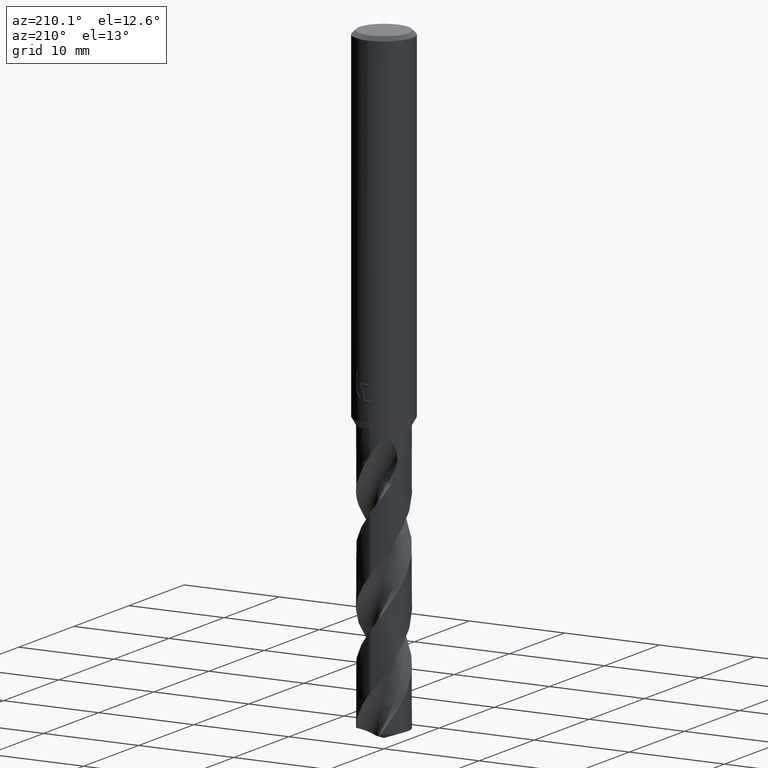
[diagram: clean part render]
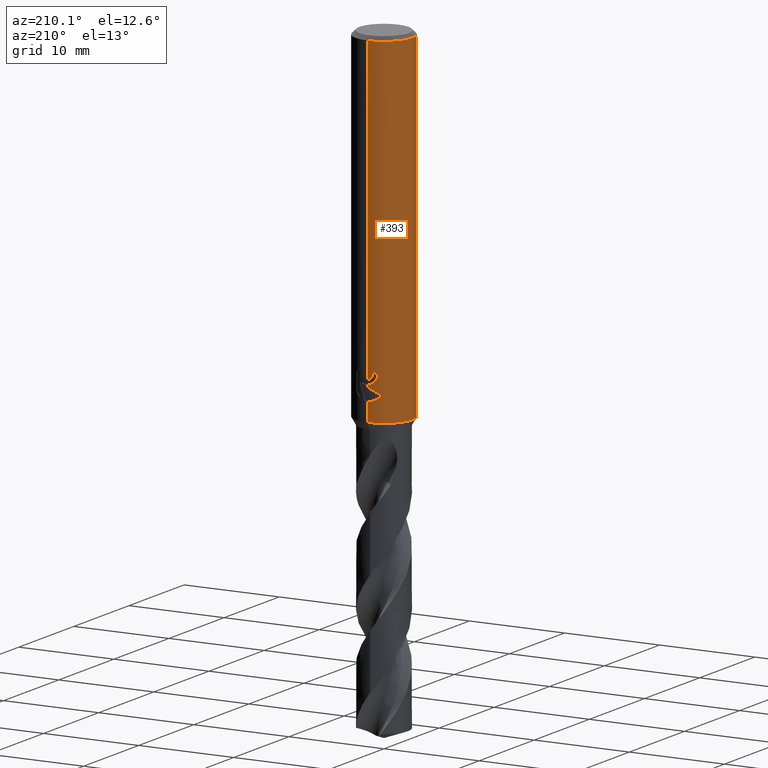
[diagram: same view with one face highlighted and labeled with its STEP entity id]
A machine part, auxiliary view. The second image highlights one B-rep face of the part: STEP entity #393.
In plain terms, the highlighted cylindrical surface (edge-blend (fillet) strip) has radius 3 mm, axis along (-0, -0, 1).
Its self-contained STEP definition (entity closure, byte-faithful):
#285=VERTEX_POINT('',#778);
#301=EDGE_CURVE('',#645,#655,#796,.T.);
#313=EDGE_CURVE('',#655,#411,#809,.T.);
#317=EDGE_CURVE('',#501,#661,#813,.T.);
#333=EDGE_CURVE('',#693,#639,#830,.T.);
#345=VERTEX_POINT('',#842);
#359=VERTEX_POINT('',#859);
#365=EDGE_CURVE('',#603,#693,#865,.T.);
#393=ADVANCED_FACE('',(#898),#899,.T.);
#411=VERTEX_POINT('',#918);
#429=EDGE_CURVE('',#639,#359,#938,.T.);
#501=VERTEX_POINT('',#1014);
#553=EDGE_CURVE('',#345,#603,#1069,.T.);
#579=EDGE_CURVE('',#733,#345,#1097,.T.);
#603=VERTEX_POINT('',#1123);
#639=VERTEX_POINT('',#1163);
#645=VERTEX_POINT('',#1169);
#655=VERTEX_POINT('',#1181);
#659=EDGE_CURVE('',#411,#501,#1185,.T.);
#661=VERTEX_POINT('',#1187);
#667=EDGE_CURVE('',#359,#645,#1194,.T.);
#693=VERTEX_POINT('',#1223);
#697=EDGE_CURVE('',#661,#285,#1227,.T.);
#703=EDGE_CURVE('',#733,#285,#1234,.T.);
#733=VERTEX_POINT('',#1267);
#778=CARTESIAN_POINT('',(0.0,3.0,-36.0));
#796=B_SPLINE_CURVE_WITH_KNOTS('',3,(#2076,#2077,#2078,#2079,#2080,#2081,#2082,#2083,#2084,#2085,#2086,#2087,#2088,#2089),.UNSPECIFIED.,.F.,.F.,(4,2,2,2,2,2,4),(3.16026050654945,3.61086409539206,4.06146768423468,4.51207127307729,4.95991823802074,5.40776520296419,5.86282890530594),.UNSPECIFIED.);
#809=LINE('',#2287,#2288);
#813=B_SPLINE_CURVE_WITH_KNOTS('',3,(#2385,#2386,#2387,#2388,#2389,#2390,#2391,#2392,#2393,#2394,#2395,#2396,#2397,#2398,#2399,#2400),.UNSPECIFIED.,.F.,.F.,(4,2,2,2,2,2,2,4),(5.66023402257373,6.29060333517104,6.60504483258975,6.91948633000846,7.23392782742717,7.54836932484587,7.86141901111221,8.17446869737855),.UNSPECIFIED.);
#830=B_SPLINE_CURVE_WITH_KNOTS('',3,(#2514,#2515,#2516,#2517,#2518,#2519,#2520,#2521,#2522,#2523,#2524,#2525,#2526,#2527,#2528,#2529,#2530,#2531,#2532,#2533,#2534,#2535,#2536,#2537,#2538,#2539,#2540),.UNSPECIFIED.,.F.,.F.,(4,2,3,2,2,2,2,2,2,2,2,2,4),(-0.54422824842136,-0.27211412421068,0.0,0.272114124210678,0.544228248421357,0.817906359646673,1.09158447087199,1.36255924571499,1.63353402055798,1.90530456554772,2.17707511053746,2.4488456555272,2.72061620051693),.UNSPECIFIED.);
#842=CARTESIAN_POINT('',(3.67381906146713E-016,-3.0,-0.399999999999999));
#859=CARTESIAN_POINT('',(-0.562333990228013,2.94682549253162,-31.3171221986971));
#865=LINE('',#2790,#2791);
#898=FACE_OUTER_BOUND('',#2924,.T.);
#899=CYLINDRICAL_SURFACE('',#2925,3.0);
#918=CARTESIAN_POINT('',(-3.67366600472444E-016,3.0,-32.7128911336578));
#938=B_SPLINE_CURVE_WITH_KNOTS('',3,(#3238,#3239,#3240,#3241,#3242,#3243,#3244,#3245,#3246,#3247,#3248,#3249,#3250,#3251,#3252,#3253,#3254,#3255,#3256,#3257,#3258,#3259,#3260,#3261,#3262,#3263,#3264),.UNSPECIFIED.,.F.,.F.,(4,2,3,2,2,2,2,2,2,2,2,2,4),(-0.54422824842136,-0.27211412421068,0.0,0.272114124210678,0.544228248421357,0.817906359646673,1.09158447087199,1.36255924571499,1.63353402055798,1.90530456554772,2.17707511053746,2.4488456555272,2.72061620051693),.UNSPECIFIED.);
#1014=CARTESIAN_POINT('',(-1.337052752443,2.68557069115386,-33.3720803908795));
#1069=CIRCLE('',#4347,3.0);
#1097=LINE('',#4390,#4391);
#1123=CARTESIAN_POINT('',(0.0,3.0,-0.399999999999999));
#1163=CARTESIAN_POINT('',(-0.486378944383045,2.96031003823262,-31.6432837483006));
#1169=CARTESIAN_POINT('',(-1.0350734039088,2.81578107254819,-31.3171221986971));
#1181=CARTESIAN_POINT('',(-2.06254272401587E-016,3.0,-32.5000801551881));
#1185=ELLIPSE('',#4912,3.34478529612858,3.0);
#1187=CARTESIAN_POINT('',(-2.46407913303377E-016,3.0,-34.0310253601033));
#1194=CIRCLE('',#4924,3.0);
#1223=CARTESIAN_POINT('',(-1.20768269592175E-015,3.0,-32.0232688117743));
#1227=LINE('',#5109,#5110);
#1234=CIRCLE('',#5121,3.0);
#1267=CARTESIAN_POINT('',(3.67381906146713E-016,-3.0,-36.0));
#2076=CARTESIAN_POINT('',(-0.944028754947609,2.84759718180646,-30.87109591768));
#2077=CARTESIAN_POINT('',(-1.00479265183033,2.82745289805341,-31.0168616503562));
#2078=CARTESIAN_POINT('',(-1.03510901790186,2.81576798068631,-31.1761006644519));
#2079=CARTESIAN_POINT('',(-1.03510901790186,2.81576798068631,-31.4765030570137));
#2080=CARTESIAN_POINT('',(-1.00479265183033,2.82745289805341,-31.6357420711094));
#2081=CARTESIAN_POINT('',(-0.88326485806506,2.86774146555976,-31.9272735364618));
#2082=CARTESIAN_POINT('',(-0.792109261194285,2.89554580131596,-32.0596991578702));
#2083=CARTESIAN_POINT('',(-0.582867737485067,2.94478284423827,-32.2682275153448));
#2084=CARTESIAN_POINT('',(-0.450640829386874,2.96956027684007,-32.358826497016));
#2085=CARTESIAN_POINT('',(-0.159819744133953,2.99930375982357,-32.4794282329782));
#2086=CARTESIAN_POINT('',(-0.00114290335869099,3.00371168811663,-32.5093686300866));
#2087=CARTESIAN_POINT('',(0.299461057962613,2.98886806232847,-32.5093686300866));
#2088=CARTESIAN_POINT('',(0.459264276215476,2.96836791045541,-32.4785566268234));
#2089=CARTESIAN_POINT('',(0.604975334200916,2.93836771779988,-32.4175314011172));
#2287=CARTESIAN_POINT('',(-3.67381906146713E-016,3.0,-18.2));
#2288=VECTOR('',#5270,1.0);
#2385=CARTESIAN_POINT('',(-1.53050642192579,2.58022287650581,-33.0319811255889));
#2386=CARTESIAN_POINT('',(-1.44691631248335,2.62980577312329,-33.2314887010961));
#2387=CARTESIAN_POINT('',(-1.32276760444366,2.69707077181617,-33.4113258593841));
#2388=CARTESIAN_POINT('',(-1.10973155101076,2.78826898930335,-33.6245951706909));
#2389=CARTESIAN_POINT('',(-1.02948996220254,2.81934349084513,-33.6916117853674));
#2390=CARTESIAN_POINT('',(-0.853932698223484,2.87738531454781,-33.8105216600777));
#2391=CARTESIAN_POINT('',(-0.758609991487907,2.90431263574779,-33.8624240602539));
#2392=CARTESIAN_POINT('',(-0.558469552260235,2.94934446690523,-33.9464055954533));
#2393=CARTESIAN_POINT('',(-0.453457041446381,2.96746268462387,-33.9785511641911));
#2394=CARTESIAN_POINT('',(-0.240810292537893,2.99223469602914,-34.0209924679526));
#2395=CARTESIAN_POINT('',(-0.133171317626829,2.99887501234033,-34.0312723335086));
#2396=CARTESIAN_POINT('',(0.0759830626177195,3.00085245803086,-34.0312723335086));
#2397=CARTESIAN_POINT('',(0.183273473896684,2.99629272230549,-34.0210815541729));
#2398=CARTESIAN_POINT('',(0.39543915272815,2.97573303917486,-33.9788816901513));
#2399=CARTESIAN_POINT('',(0.500318639064909,2.95974677710468,-33.9468871509919));
#2400=CARTESIAN_POINT('',(0.600330982089903,2.93932011049205,-33.9050368602192));
#2514=CARTESIAN_POINT('',(0.665621182276714,2.92522622060321,-30.8140957881762));
#2515=CARTESIAN_POINT('',(0.728850563417096,2.91083867849353,-30.877518087557));
#2516=CARTESIAN_POINT('',(0.783900459387161,2.89602337967411,-30.9578702196133));
#2517=CARTESIAN_POINT('',(0.857188692916628,2.87518328740958,-31.1345580124299));
#2518=CARTESIAN_POINT('',(0.875400981188567,2.86943777108584,-31.2309373045166));
#2519=CARTESIAN_POINT('',(0.875400981188567,2.86943777108584,-31.3216420125868));
#2520=CARTESIAN_POINT('',(0.875400981188567,2.86943777108584,-31.412346720657));
#2521=CARTESIAN_POINT('',(0.857188692916629,2.87518328740958,-31.5087260127437));
#2522=CARTESIAN_POINT('',(0.783900459387161,2.89602337967411,-31.6854138055602));
#2523=CARTESIAN_POINT('',(0.728850563417096,2.91083867849353,-31.7657659376165));
#2524=CARTESIAN_POINT('',(0.60202838769231,2.93969645569731,-31.8929750586276));
#2525=CARTESIAN_POINT('',(0.5214778595293,2.95568533572518,-31.9483797636259));
#2526=CARTESIAN_POINT('',(0.34429909105015,2.98152194310932,-32.0221641076746));
#2527=CARTESIAN_POINT('',(0.247628172090375,2.99115403786358,-32.0405166027747));
#2528=CARTESIAN_POINT('',(0.0663244946631877,3.00062654348629,-32.0405166027747));
#2529=CARTESIAN_POINT('',(-0.0299285908853379,3.00115720326599,-32.0224875186921));
#2530=CARTESIAN_POINT('',(-0.206881310600538,2.99416773126077,-31.949244373347));
#2531=CARTESIAN_POINT('',(-0.287593937381961,2.98687212067831,-31.8940404490632));
#2532=CARTESIAN_POINT('',(-0.415200117492864,2.97182576996222,-31.7666805419979));
#2533=CARTESIAN_POINT('',(-0.470604049431396,2.96309385107775,-31.6859121102136));
#2534=CARTESIAN_POINT('',(-0.544183869965539,2.95046729924835,-31.5086992019516));
#2535=CARTESIAN_POINT('',(-0.562348199187247,2.94682278104247,-31.41223219425));
#2536=CARTESIAN_POINT('',(-0.562348199187247,2.94682278104247,-31.2310518309235));
#2537=CARTESIAN_POINT('',(-0.54418386996554,2.95046729924835,-31.134584823222));
#2538=CARTESIAN_POINT('',(-0.4706040494314,2.96309385107775,-30.95737191496));
#2539=CARTESIAN_POINT('',(-0.415200117492863,2.97182576996222,-30.8766034831756));
#2540=CARTESIAN_POINT('',(-0.351303479704285,2.97935997575782,-30.812830162452));
#2790=CARTESIAN_POINT('',(-3.67381906146713E-016,3.0,-18.2));
#2791=VECTOR('',#5320,1.0);
#2924=EDGE_LOOP('',(#5381,#5382,#5383,#5384,#5385,#5386,#5387,#5388,#5389,#5390,#5391,#5392));
#2925=AXIS2_PLACEMENT_3D('',#5393,#5394,#5395);
#3238=CARTESIAN_POINT('',(0.665621182276714,2.92522622060321,-30.8140957881762));
#3239=CARTESIAN_POINT('',(0.728850563417096,2.91083867849353,-30.877518087557));
#3240=CARTESIAN_POINT('',(0.783900459387161,2.89602337967411,-30.9578702196133));
#3241=CARTESIAN_POINT('',(0.857188692916628,2.87518328740958,-31.1345580124299));
#3242=CARTESIAN_POINT('',(0.875400981188567,2.86943777108584,-31.2309373045166));
#3243=CARTESIAN_POINT('',(0.875400981188567,2.86943777108584,-31.3216420125868));
#3244=CARTESIAN_POINT('',(0.875400981188567,2.86943777108584,-31.412346720657));
#3245=CARTESIAN_POINT('',(0.857188692916629,2.87518328740958,-31.5087260127437));
#3246=CARTESIAN_POINT('',(0.783900459387161,2.89602337967411,-31.6854138055602));
#3247=CARTESIAN_POINT('',(0.728850563417096,2.91083867849353,-31.7657659376165));
#3248=CARTESIAN_POINT('',(0.60202838769231,2.93969645569731,-31.8929750586276));
#3249=CARTESIAN_POINT('',(0.5214778595293,2.95568533572518,-31.9483797636259));
#3250=CARTESIAN_POINT('',(0.34429909105015,2.98152194310932,-32.0221641076746));
#3251=CARTESIAN_POINT('',(0.247628172090375,2.99115403786358,-32.0405166027747));
#3252=CARTESIAN_POINT('',(0.0663244946631877,3.00062654348629,-32.0405166027747));
#3253=CARTESIAN_POINT('',(-0.0299285908853379,3.00115720326599,-32.0224875186921));
#3254=CARTESIAN_POINT('',(-0.206881310600538,2.99416773126077,-31.949244373347));
#3255=CARTESIAN_POINT('',(-0.287593937381961,2.98687212067831,-31.8940404490632));
#3256=CARTESIAN_POINT('',(-0.415200117492864,2.97182576996222,-31.7666805419979));
#3257=CARTESIAN_POINT('',(-0.470604049431396,2.96309385107775,-31.6859121102136));
#3258=CARTESIAN_POINT('',(-0.544183869965539,2.95046729924835,-31.5086992019516));
#3259=CARTESIAN_POINT('',(-0.562348199187247,2.94682278104247,-31.41223219425));
#3260=CARTESIAN_POINT('',(-0.562348199187247,2.94682278104247,-31.2310518309235));
#3261=CARTESIAN_POINT('',(-0.54418386996554,2.95046729924835,-31.134584823222));
#3262=CARTESIAN_POINT('',(-0.4706040494314,2.96309385107775,-30.95737191496));
#3263=CARTESIAN_POINT('',(-0.415200117492863,2.97182576996222,-30.8766034831756));
#3264=CARTESIAN_POINT('',(-0.351303479704285,2.97935997575782,-30.812830162452));
#4347=AXIS2_PLACEMENT_3D('',#5532,#5533,#5534);
#4390=CARTESIAN_POINT('',(3.67381906146713E-016,-3.0,-18.2));
#4391=VECTOR('',#5561,1.0);
#4912=AXIS2_PLACEMENT_3D('',#5642,#5643,#5644);
#4924=AXIS2_PLACEMENT_3D('',#5656,#5657,#5658);
#5109=CARTESIAN_POINT('',(-3.67381906146713E-016,3.0,-18.2));
#5110=VECTOR('',#5713,1.0);
#5121=AXIS2_PLACEMENT_3D('',#5732,#5733,#5734);
#5270=DIRECTION('',(0.0,0.0,-1.0));
#5320=DIRECTION('',(0.0,0.0,-1.0));
#5381=ORIENTED_EDGE('',*,*,#365,.T.);
#5382=ORIENTED_EDGE('',*,*,#333,.T.);
#5383=ORIENTED_EDGE('',*,*,#429,.T.);
#5384=ORIENTED_EDGE('',*,*,#667,.T.);
#5385=ORIENTED_EDGE('',*,*,#301,.T.);
#5386=ORIENTED_EDGE('',*,*,#313,.T.);
#5387=ORIENTED_EDGE('',*,*,#659,.T.);
#5388=ORIENTED_EDGE('',*,*,#317,.T.);
#5389=ORIENTED_EDGE('',*,*,#697,.T.);
#5390=ORIENTED_EDGE('',*,*,#703,.F.);
#5391=ORIENTED_EDGE('',*,*,#579,.T.);
#5392=ORIENTED_EDGE('',*,*,#553,.T.);
#5393=CARTESIAN_POINT('',(0.0,0.0,-18.2));
#5394=DIRECTION('',(-0.0,-0.0,1.0));
#5395=DIRECTION('',(0.0,1.0,0.0));
#5532=CARTESIAN_POINT('',(0.0,0.0,-0.399999999999999));
#5533=DIRECTION('',(0.0,0.0,-1.0));
#5534=DIRECTION('',(0.0,1.0,0.0));
#5561=DIRECTION('',(-0.0,-0.0,1.0));
#5642=CARTESIAN_POINT('',(0.0,0.0,-32.7128911336578));
#5643=DIRECTION('',(-0.442195774284071,0.0,0.896918556617774));
#5644=DIRECTION('',(0.896918556617774,-0.0,0.442195774284071));
#5656=CARTESIAN_POINT('',(0.0,0.0,-31.3171221986971));
#5657=DIRECTION('',(0.0,-0.0,1.0));
#5658=DIRECTION('',(0.0,1.0,0.0));
#5713=DIRECTION('',(0.0,0.0,-1.0));
#5732=CARTESIAN_POINT('',(0.0,0.0,-36.0));
#5733=DIRECTION('',(0.0,0.0,-1.0));
#5734=DIRECTION('',(0.0,1.0,0.0));